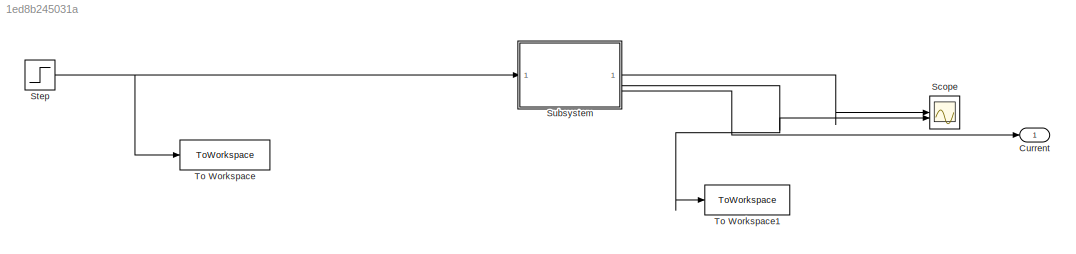
MODEL slx_1ed8b245031a
KIND model
CONFIG AbsTol = auto
CONFIG EnableMultiTasking = off
CONFIG FixedStep = auto
CONFIG MaxStep = auto
CONFIG MinStep = auto
CONFIG RelTol = 1e-3
CONFIG SampleTimeConstraint = Unconstrained
CONFIG SolverName = VariableStepAuto
CONFIG StartTime = 0.0
CONFIG StopTime = 10.0
BLOCK [Outport] Current 
BLOCK [Scope] Scope
  Floating = off
  NumInputPorts = 2
  ScopeSpecificationString = Simulink.scopes.TimeScopeBlockCfg('CurrentConfiguration', extmgr.ConfigurationSet(extmgr.Configuration('Core','General UI',true),extmgr.Configuration('Core','Source UI',true),extmgr.Configuration('Sources','WiredSimulink',true),extmgr.Configuration('Visuals','Time Domain',true,'SerializedDisplays',{struct('MinYLimReal','-2.76768','MaxYLimReal','24.90912','YLabelReal','','MinYLimMag','0.00000','Max...<+2059ch>
BLOCK [Step] Step
  After = 12
  Before = 6
  SampleTime = 0.001
  Time = 0
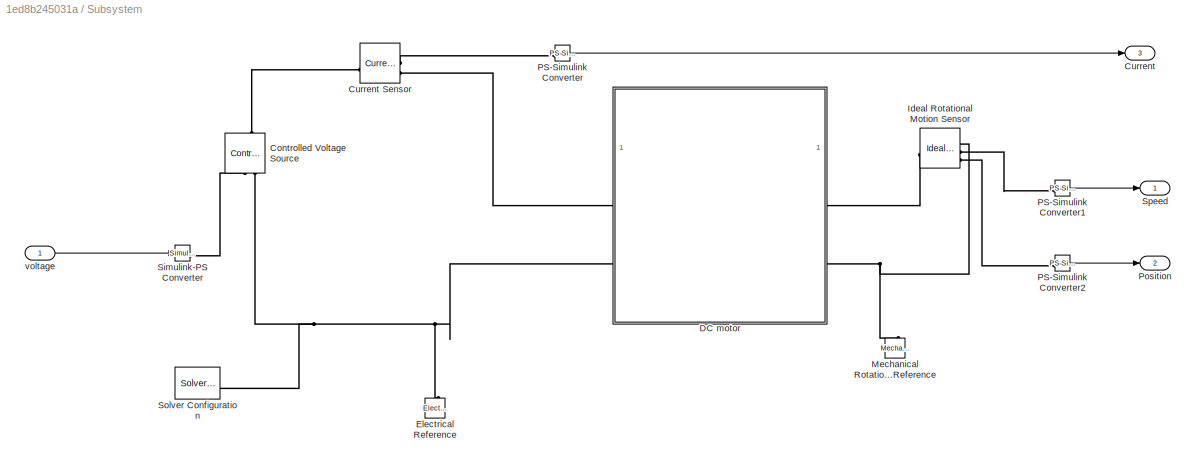
BLOCK [SubSystem] Subsystem
BLOCK [Reference] Subsystem/Controlled Voltage Source  REF=fl_lib/Electrical/Electrical Sources/Controlled Voltage
Source
  NameLocation = right
  SourceBlock = fl_lib/Electrical/Electrical Sources/Controlled Voltage\nSource
  SourceType = Controlled Voltage\nSource
BLOCK [Outport] Subsystem/Current 
  Port = 3
BLOCK [Reference] Subsystem/Current Sensor  REF=fl_lib/Electrical/Electrical Sensors/Current Sensor
  SourceBlock = fl_lib/Electrical/Electrical Sensors/Current Sensor
  SourceType = Current Sensor
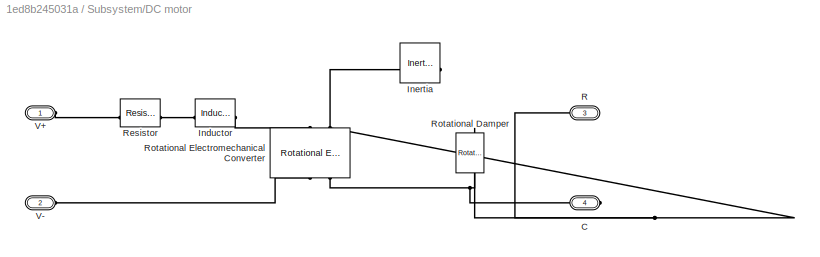
BLOCK [SubSystem] Subsystem/DC motor
BLOCK [PMIOPort] Subsystem/DC motor/ V-
  Port = 2
  Side = Left
BLOCK [PMIOPort] Subsystem/DC motor/C
  Port = 4
  Side = Right
BLOCK [Reference] Subsystem/DC motor/Inductor  REF=ee_lib/Passive/Inductor
  SourceBlock = ee_lib/Passive/Inductor
  SourceType = Inductor
BLOCK [Reference] Subsystem/DC motor/Inertia  REF=fl_lib/Mechanical/Rotational Elements/Inertia
  NameLocation = top
  SourceBlock = fl_lib/Mechanical/Rotational Elements/Inertia
  SourceType = Inertia
BLOCK [PMIOPort] Subsystem/DC motor/R
  Port = 3
  Side = Right
BLOCK [Reference] Subsystem/DC motor/Resistor  REF=fl_lib/Electrical/Electrical Elements/Resistor
  SourceBlock = fl_lib/Electrical/Electrical Elements/Resistor
  SourceType = Resistor
BLOCK [Reference] Subsystem/DC motor/Rotational Damper  REF=fl_lib/Mechanical/Rotational Elements/Rotational Damper
  NameLocation = left
  SourceBlock = fl_lib/Mechanical/Rotational Elements/Rotational Damper
  SourceType = Rotational Damper
BLOCK [Reference] Subsystem/DC motor/Rotational Electromechanical Converter  REF=fl_lib/Electrical/Electrical Elements/Rotational
Electromechanical
Converter
  NameLocation = right
  SourceBlock = fl_lib/Electrical/Electrical Elements/Rotational\nElectromechanical\nConverter
  SourceType = Rotational\nElectromechanical\nConverter
BLOCK [PMIOPort] Subsystem/DC motor/V+
  Side = Left
BLOCK [Reference] Subsystem/Electrical Reference  REF=fl_lib/Electrical/Electrical Elements/Electrical Reference
  NameLocation = right
  SourceBlock = fl_lib/Electrical/Electrical Elements/Electrical Reference
  SourceType = Electrical Reference
BLOCK [Reference] Subsystem/Ideal Rotational Motion Sensor  REF=fl_lib/Mechanical/Mechanical Sensors/Ideal Rotational
Motion Sensor
  SourceBlock = fl_lib/Mechanical/Mechanical Sensors/Ideal Rotational\nMotion Sensor
  SourceType = Ideal Rotational\nMotion Sensor
BLOCK [Reference] Subsystem/Mechanical Rotational Reference  REF=fl_lib/Mechanical/Rotational Elements/Mechanical
Rotational Reference
  NameLocation = right
  SourceBlock = fl_lib/Mechanical/Rotational Elements/Mechanical\nRotational Reference
  SourceType = Mechanical\nRotational Reference
BLOCK [Reference] Subsystem/PS-Simulink Converter  REF=nesl_utility/PS-Simulink
Converter
  SourceBlock = nesl_utility/PS-Simulink\nConverter
  SourceType = PS-Simulink\nConverter
BLOCK [Reference] Subsystem/PS-Simulink Converter1  REF=nesl_utility/PS-Simulink
Converter
  SourceBlock = nesl_utility/PS-Simulink\nConverter
  SourceType = PS-Simulink\nConverter
BLOCK [Reference] Subsystem/PS-Simulink Converter2  REF=nesl_utility/PS-Simulink
Converter
  SourceBlock = nesl_utility/PS-Simulink\nConverter
  SourceType = PS-Simulink\nConverter
BLOCK [Outport] Subsystem/Position
  Port = 2
BLOCK [Reference] Subsystem/Simulink-PS Converter  REF=nesl_utility/Simulink-PS
Converter
  SourceBlock = nesl_utility/Simulink-PS\nConverter
  SourceType = Simulink-PS\nConverter
BLOCK [Reference] Subsystem/Solver Configuration  REF=nesl_utility/Solver
Configuration
  SourceBlock = nesl_utility/Solver\nConfiguration
  SourceType = Solver\nConfiguration
BLOCK [Outport] Subsystem/Speed
BLOCK [Inport] Subsystem/voltage
BLOCK [ToWorkspace] To Workspace
  FixptAsFi = on
  MaxDataPoints = inf
  SampleTime = -1
  VariableName = input
BLOCK [ToWorkspace] To Workspace1
  FixptAsFi = on
  MaxDataPoints = inf
  SampleTime = -1
  VariableName = output
NET Step:1 -> Subsystem:1, To Workspace:1
LINE Subsystem/PS-Simulink Converter1:1 -> Subsystem/Speed:1
LINE Subsystem/PS-Simulink Converter2:1 -> Subsystem/Position:1
LINE Subsystem/PS-Simulink Converter:1 -> Subsystem/Current :1
LINE Subsystem/voltage:1 -> Subsystem/Simulink-PS Converter:1
LINE Subsystem:1 -> Scope:1
NET Subsystem:2 -> Scope:2, To Workspace1:1
LINE Subsystem:3 -> Current :1
PLINE Subsystem/Controlled Voltage Source:LConn1 -- Subsystem/Current Sensor:LConn1
PLINE Subsystem/Controlled Voltage Source:RConn1 -- Subsystem/Simulink-PS Converter:RConn1
PNET net1: Subsystem/Controlled Voltage Source:RConn2 -- Subsystem/DC motor:LConn2 -- Subsystem/Electrical Reference:LConn1 -- Subsystem/Solver Configuration:RConn1
PLINE Subsystem/Current Sensor:RConn1 -- Subsystem/PS-Simulink Converter:LConn1
PLINE Subsystem/Current Sensor:RConn2 -- Subsystem/DC motor:LConn1
PLINE Subsystem/DC motor/ V-:RConn1 -- Subsystem/DC motor/Rotational Electromechanical Converter:RConn1
PNET net2: Subsystem/DC motor/C:RConn1 -- Subsystem/DC motor/Rotational Damper:LConn1 -- Subsystem/DC motor/Rotational Electromechanical Converter:RConn2
PLINE Subsystem/DC motor/Inductor:LConn1 -- Subsystem/DC motor/Resistor:RConn1
PLINE Subsystem/DC motor/Inductor:RConn1 -- Subsystem/DC motor/Rotational Electromechanical Converter:LConn1
PNET net3: Subsystem/DC motor/Inertia:LConn1 -- Subsystem/DC motor/R:RConn1 -- Subsystem/DC motor/Rotational Damper:RConn1 -- Subsystem/DC motor/Rotational Electromechanical Converter:LConn2
PLINE Subsystem/DC motor/Resistor:LConn1 -- Subsystem/DC motor/V+:RConn1
PLINE Subsystem/DC motor:RConn1 -- Subsystem/Ideal Rotational Motion Sensor:LConn1
PNET net4: Subsystem/DC motor:RConn2 -- Subsystem/Ideal Rotational Motion Sensor:RConn1 -- Subsystem/Mechanical Rotational Reference:LConn1
PLINE Subsystem/Ideal Rotational Motion Sensor:RConn2 -- Subsystem/PS-Simulink Converter1:LConn1
PLINE Subsystem/Ideal Rotational Motion Sensor:RConn3 -- Subsystem/PS-Simulink Converter2:LConn1
note: NET lines group one-source signal fan-out (src -> all destinations, sorted); 1:1 wires keep LINE; PNET lines group multi-terminal physical nets as a canonical sorted terminal list (undirected conserving connections); 2-terminal nets keep the pairwise PLINE form
